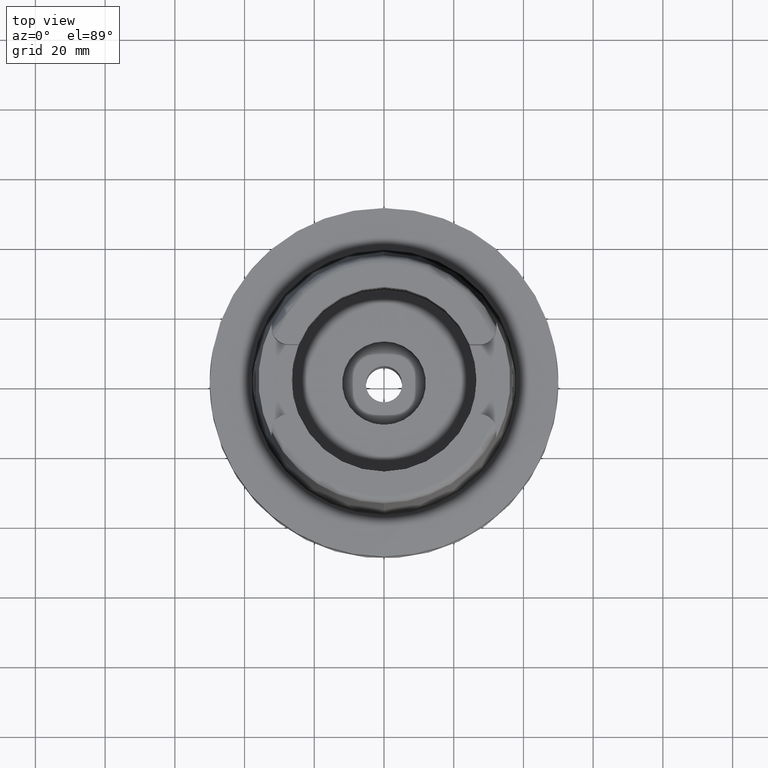
[diagram: clean part render]
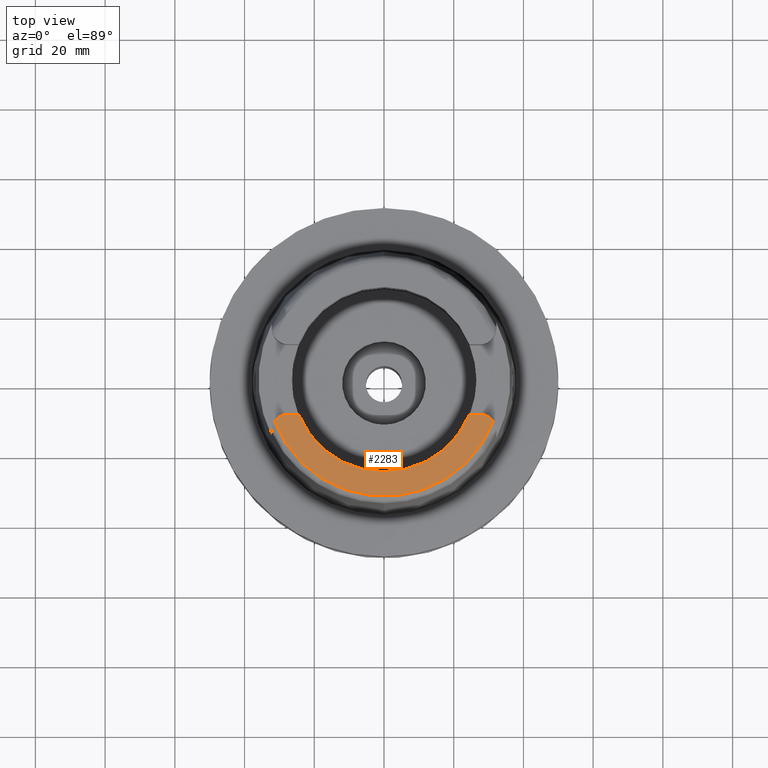
[diagram: same view with one face highlighted and labeled with its STEP entity id]
A machine part, top view. The second image highlights one B-rep face of the part: STEP entity #2283.
In plain terms, the highlighted planar face has unit normal (0, 0, 1).
Its self-contained STEP definition (entity closure, byte-faithful):
#95 = PLANE ( 'NONE',  #414 ) ;
#126 = CARTESIAN_POINT ( 'NONE',  ( 24.53670515777999839, -10.00999999999999979, 50.00000000000000000 ) ) ;
#131 = DIRECTION ( 'NONE',  ( 0.0000000000000000000, 0.0000000000000000000, -1.000000000000000000 ) ) ;
#374 = ORIENTED_EDGE ( 'NONE', *, *, #3248, .F. ) ;
#412 = VECTOR ( 'NONE', #525, 1000.000000000000000 ) ;
#414 = AXIS2_PLACEMENT_3D ( 'NONE', #4481, #610, #3907 ) ;
#427 = VERTEX_POINT ( 'NONE', #1360 ) ;
#512 = ORIENTED_EDGE ( 'NONE', *, *, #1324, .T. ) ;
#514 = VECTOR ( 'NONE', #4023, 1000.000000000000000 ) ;
#525 = DIRECTION ( 'NONE',  ( -1.000000000000000000, 1.442003377036999905E-13, 0.0000000000000000000 ) ) ;
#539 = DIRECTION ( 'NONE',  ( 0.0000000000000000000, 0.0000000000000000000, 1.000000000000000000 ) ) ;
#566 = DIRECTION ( 'NONE',  ( 0.0000000000000000000, 0.0000000000000000000, -1.000000000000000000 ) ) ;
#567 = ORIENTED_EDGE ( 'NONE', *, *, #769, .F. ) ;
#610 = DIRECTION ( 'NONE',  ( 0.0000000000000000000, 0.0000000000000000000, 1.000000000000000000 ) ) ;
#674 = AXIS2_PLACEMENT_3D ( 'NONE', #4734, #751, #3768 ) ;
#724 = CARTESIAN_POINT ( 'NONE',  ( -24.53670515777999839, -10.00999999999999979, 50.00000000000000000 ) ) ;
#751 = DIRECTION ( 'NONE',  ( 0.0000000000000000000, 0.0000000000000000000, -1.000000000000000000 ) ) ;
#769 = EDGE_CURVE ( 'NONE', #2250, #4639, #864, .T. ) ;
#864 = CIRCLE ( 'NONE', #674, 4.879999999999999005 ) ;
#950 = LINE ( 'NONE', #1815, #412 ) ;
#1034 = FACE_OUTER_BOUND ( 'NONE', #2603, .T. ) ;
#1050 = EDGE_CURVE ( 'NONE', #3619, #5320, #3471, .T. ) ;
#1079 = CARTESIAN_POINT ( 'NONE',  ( 0.0000000000000000000, 0.0000000000000000000, 50.00000000000000000 ) ) ;
#1152 = DIRECTION ( 'NONE',  ( 0.0000000000000000000, 0.0000000000000000000, 1.000000000000000000 ) ) ;
#1324 = EDGE_CURVE ( 'NONE', #3619, #427, #950, .T. ) ;
#1360 = CARTESIAN_POINT ( 'NONE',  ( -27.36999999999999744, -10.00999999999999979, 50.00000000000000000 ) ) ;
#1525 = ORIENTED_EDGE ( 'NONE', *, *, #1050, .F. ) ;
#1582 = AXIS2_PLACEMENT_3D ( 'NONE', #3137, #566, #3952 ) ;
#1770 = AXIS2_PLACEMENT_3D ( 'NONE', #1079, #131, #5317 ) ;
#1815 = CARTESIAN_POINT ( 'NONE',  ( -24.53670515777999839, -10.00999999999999979, 50.00000000000000000 ) ) ;
#1830 = EDGE_CURVE ( 'NONE', #5150, #427, #4830, .T. ) ;
#1979 = VERTEX_POINT ( 'NONE', #126 ) ;
#2031 = AXIS2_PLACEMENT_3D ( 'NONE', #5145, #539, #2652 ) ;
#2245 = CARTESIAN_POINT ( 'NONE',  ( -31.35385269249000473, -12.07161079256999869, 50.00000000000000000 ) ) ;
#2250 = VERTEX_POINT ( 'NONE', #4875 ) ;
#2283 = ADVANCED_FACE ( 'NONE', ( #1034 ), #95, .T. ) ;
#2381 = EDGE_CURVE ( 'NONE', #2250, #1979, #4815, .T. ) ;
#2603 = EDGE_LOOP ( 'NONE', ( #374, #567, #3832, #2941, #1525, #512, #3686 ) ) ;
#2652 = DIRECTION ( 'NONE',  ( 0.0000000000000000000, -1.000000000000000000, 0.0000000000000000000 ) ) ;
#2659 = AXIS2_PLACEMENT_3D ( 'NONE', #4567, #1152, #2868 ) ;
#2724 = CARTESIAN_POINT ( 'NONE',  ( 0.0000000000000000000, -26.50000000000000000, 50.00000000000000000 ) ) ;
#2769 = CIRCLE ( 'NONE', #1770, 33.59743838135999994 ) ;
#2868 = DIRECTION ( 'NONE',  ( -0.9259134021805098813, -0.3777358490566039562, 0.0000000000000000000 ) ) ;
#2941 = ORIENTED_EDGE ( 'NONE', *, *, #3054, .F. ) ;
#3054 = EDGE_CURVE ( 'NONE', #5320, #1979, #5304, .T. ) ;
#3137 = CARTESIAN_POINT ( 'NONE',  ( -27.36999999999999744, -14.89000000000000057, 50.00000000000000000 ) ) ;
#3248 = EDGE_CURVE ( 'NONE', #4639, #5150, #2769, .T. ) ;
#3471 = CIRCLE ( 'NONE', #2659, 26.50000000000000711 ) ;
#3606 = CARTESIAN_POINT ( 'NONE',  ( 27.36999999999999744, -10.00999999999999979, 50.00000000000000000 ) ) ;
#3619 = VERTEX_POINT ( 'NONE', #724 ) ;
#3686 = ORIENTED_EDGE ( 'NONE', *, *, #1830, .F. ) ;
#3768 = DIRECTION ( 'NONE',  ( 0.0000000000000000000, 1.000000000000000000, 0.0000000000000000000 ) ) ;
#3832 = ORIENTED_EDGE ( 'NONE', *, *, #2381, .T. ) ;
#3907 = DIRECTION ( 'NONE',  ( 1.000000000000000000, 0.0000000000000000000, 0.0000000000000000000 ) ) ;
#3952 = DIRECTION ( 'NONE',  ( -0.8163632566568778115, 0.5775387720149849358, 0.0000000000000000000 ) ) ;
#4023 = DIRECTION ( 'NONE',  ( -1.000000000000000000, -1.454542536837999925E-13, 0.0000000000000000000 ) ) ;
#4481 = CARTESIAN_POINT ( 'NONE',  ( 0.0000000000000000000, 0.0000000000000000000, 50.00000000000000000 ) ) ;
#4567 = CARTESIAN_POINT ( 'NONE',  ( 0.0000000000000000000, 0.0000000000000000000, 50.00000000000000000 ) ) ;
#4639 = VERTEX_POINT ( 'NONE', #5058 ) ;
#4734 = CARTESIAN_POINT ( 'NONE',  ( 27.36999999999999744, -14.89000000000000057, 50.00000000000000000 ) ) ;
#4815 = LINE ( 'NONE', #3606, #514 ) ;
#4830 = CIRCLE ( 'NONE', #1582, 4.880000000000001670 ) ;
#4875 = CARTESIAN_POINT ( 'NONE',  ( 27.36999999999999744, -10.00999999999999979, 50.00000000000000000 ) ) ;
#5058 = CARTESIAN_POINT ( 'NONE',  ( 31.35385269249000473, -12.07161079256999869, 50.00000000000000000 ) ) ;
#5145 = CARTESIAN_POINT ( 'NONE',  ( 0.0000000000000000000, 0.0000000000000000000, 50.00000000000000000 ) ) ;
#5150 = VERTEX_POINT ( 'NONE', #2245 ) ;
#5304 = CIRCLE ( 'NONE', #2031, 26.50000000000000000 ) ;
#5317 = DIRECTION ( 'NONE',  ( 0.9332215253017949186, -0.3593015233941980191, 0.0000000000000000000 ) ) ;
#5320 = VERTEX_POINT ( 'NONE', #2724 ) ;